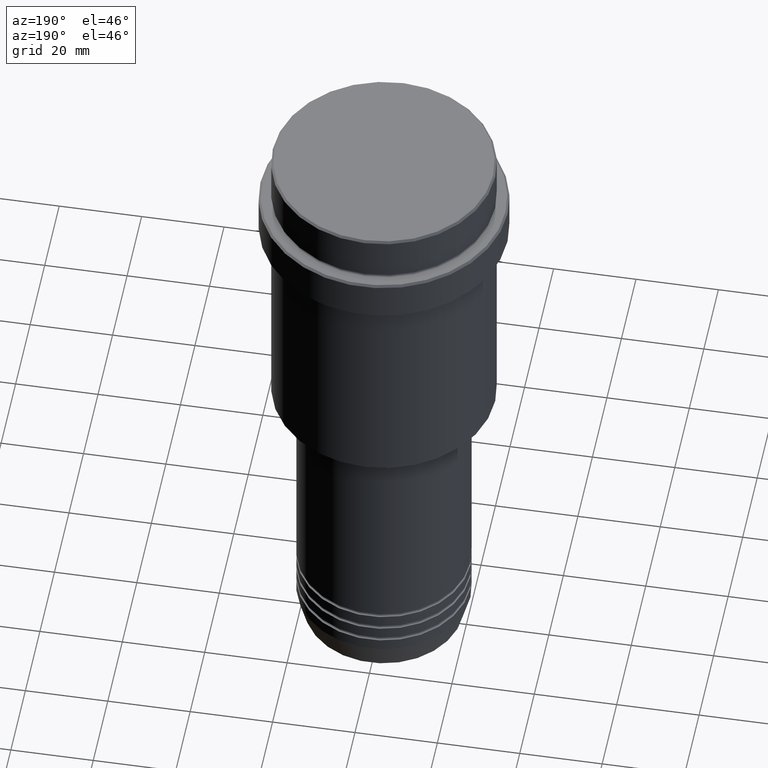
[diagram: clean part render]
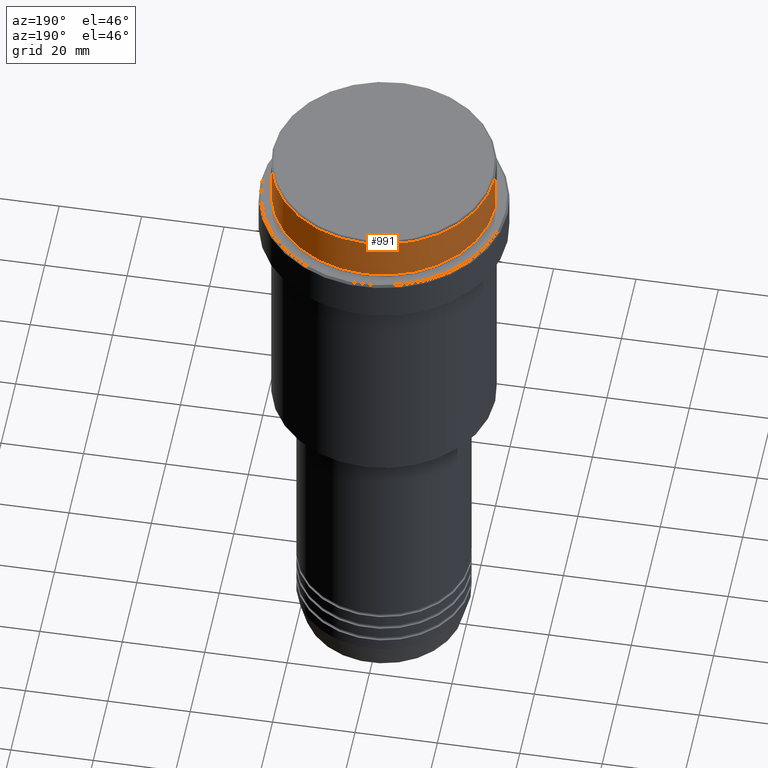
[diagram: same view with one face highlighted and labeled with its STEP entity id]
A machine part, auxiliary view. The second image highlights one B-rep face of the part: STEP entity #991.
In plain terms, the highlighted cylindrical surface (partial cylindrical patch) has radius 27 mm, axis along (-0, -0, 1).
Its self-contained STEP definition (entity closure, byte-faithful):
#5 = CARTESIAN_POINT ( 'NONE',  ( -26.99999999999999645, 3.306546357697853339E-15, 0.000000000000000000 ) ) ;
#12 = CIRCLE ( 'NONE', #283, 26.99999999999999645 ) ;
#57 = EDGE_CURVE ( 'NONE', #1246, #1219, #436, .T. ) ;
#63 = DIRECTION ( 'NONE',  ( 1.000000000000000000, 0.000000000000000000, 0.000000000000000000 ) ) ;
#74 = VERTEX_POINT ( 'NONE', #992 ) ;
#91 = DIRECTION ( 'NONE',  ( 1.000000000000000000, 0.000000000000000000, 0.000000000000000000 ) ) ;
#106 = CARTESIAN_POINT ( 'NONE',  ( 26.99999999999999645, 0.000000000000000000, -11.00000000000000178 ) ) ;
#211 = CARTESIAN_POINT ( 'NONE',  ( 26.99999999999999645, 0.000000000000000000, 0.000000000000000000 ) ) ;
#283 = AXIS2_PLACEMENT_3D ( 'NONE', #1075, #645, #91 ) ;
#329 = AXIS2_PLACEMENT_3D ( 'NONE', #1150, #883, #63 ) ;
#415 = CARTESIAN_POINT ( 'NONE',  ( -26.99999999999999645, 3.306546357697853339E-15, -11.00000000000000178 ) ) ;
#420 = FACE_OUTER_BOUND ( 'NONE', #649, .T. ) ;
#425 = DIRECTION ( 'NONE',  ( 1.000000000000000000, 0.000000000000000000, 0.000000000000000000 ) ) ;
#436 = LINE ( 'NONE', #5, #504 ) ;
#504 = VECTOR ( 'NONE', #1316, 1000.000000000000000 ) ;
#530 = EDGE_CURVE ( 'NONE', #1219, #74, #12, .T. ) ;
#593 = VECTOR ( 'NONE', #1074, 1000.000000000000000 ) ;
#600 = ORIENTED_EDGE ( 'NONE', *, *, #1148, .T. ) ;
#645 = DIRECTION ( 'NONE',  ( 0.000000000000000000, 0.000000000000000000, -1.000000000000000000 ) ) ;
#649 = EDGE_LOOP ( 'NONE', ( #600, #869, #824, #1057 ) ) ;
#740 = CARTESIAN_POINT ( 'NONE',  ( 0.000000000000000000, 0.000000000000000000, 0.000000000000000000 ) ) ;
#824 = ORIENTED_EDGE ( 'NONE', *, *, #530, .T. ) ;
#850 = CYLINDRICAL_SURFACE ( 'NONE', #948, 26.99999999999999645 ) ;
#869 = ORIENTED_EDGE ( 'NONE', *, *, #57, .T. ) ;
#883 = DIRECTION ( 'NONE',  ( -0.000000000000000000, -0.000000000000000000, 1.000000000000000000 ) ) ;
#916 = EDGE_CURVE ( 'NONE', #986, #74, #974, .T. ) ;
#948 = AXIS2_PLACEMENT_3D ( 'NONE', #740, #1192, #425 ) ;
#974 = LINE ( 'NONE', #211, #593 ) ;
#986 = VERTEX_POINT ( 'NONE', #106 ) ;
#991 = ADVANCED_FACE ( 'NONE', ( #420 ), #850, .T. ) ;
#992 = CARTESIAN_POINT ( 'NONE',  ( 26.99999999999999645, 0.000000000000000000, -0.5000000000000038858 ) ) ;
#1057 = ORIENTED_EDGE ( 'NONE', *, *, #916, .F. ) ;
#1074 = DIRECTION ( 'NONE',  ( -0.000000000000000000, -0.000000000000000000, 1.000000000000000000 ) ) ;
#1075 = CARTESIAN_POINT ( 'NONE',  ( 0.000000000000000000, 0.000000000000000000, -0.5000000000000038858 ) ) ;
#1148 = EDGE_CURVE ( 'NONE', #986, #1246, #1340, .T. ) ;
#1150 = CARTESIAN_POINT ( 'NONE',  ( 0.000000000000000000, 0.000000000000000000, -11.00000000000000178 ) ) ;
#1159 = CARTESIAN_POINT ( 'NONE',  ( -26.99999999999999645, 3.306546357697853339E-15, -0.5000000000000038858 ) ) ;
#1192 = DIRECTION ( 'NONE',  ( -0.000000000000000000, -0.000000000000000000, 1.000000000000000000 ) ) ;
#1219 = VERTEX_POINT ( 'NONE', #1159 ) ;
#1246 = VERTEX_POINT ( 'NONE', #415 ) ;
#1316 = DIRECTION ( 'NONE',  ( -0.000000000000000000, -0.000000000000000000, 1.000000000000000000 ) ) ;
#1340 = CIRCLE ( 'NONE', #329, 26.99999999999999645 ) ;